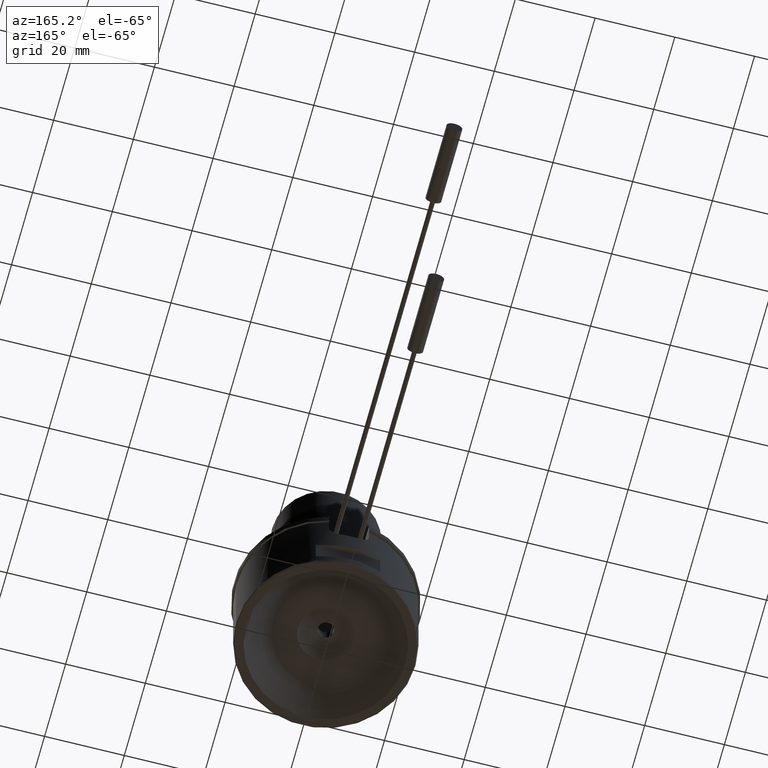
[diagram: clean part render]
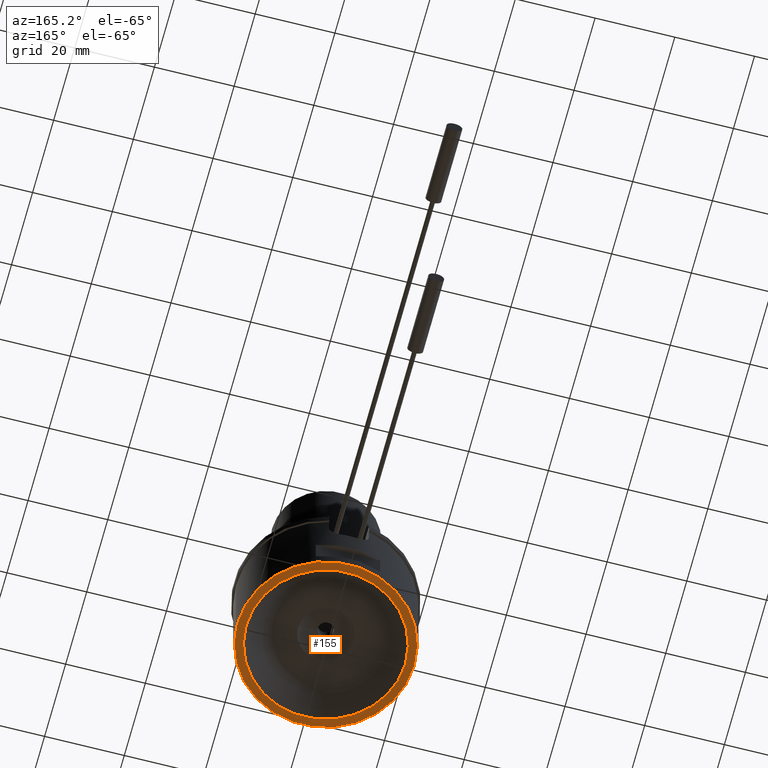
[diagram: same view with one face highlighted and labeled with its STEP entity id]
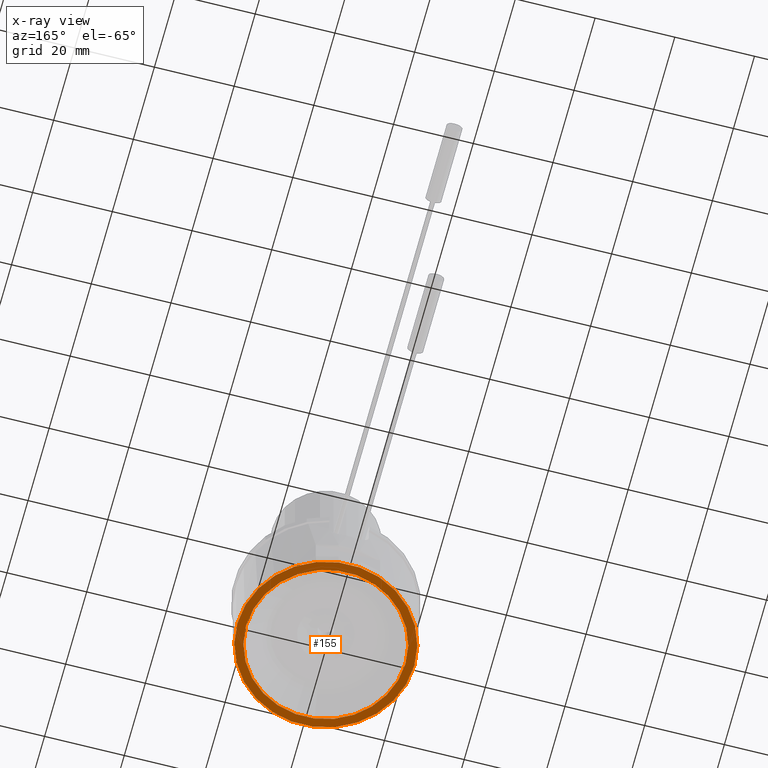
[diagram: x-ray of the same camera — body ghosted, the highlighted face saturated]
A machine part, auxiliary view. The second image highlights one B-rep face of the part: STEP entity #155.
The next image is the same camera in x-ray: the body ghosted, the highlighted face saturated — about 0% of this face is hidden behind the body in this view.
In plain terms, the highlighted planar face has unit normal (0, 0, 1).
Its self-contained STEP definition (entity closure, byte-faithful):
#155=ADVANCED_FACE('',(#332,#333),#210,.F.);
#210=PLANE('',#1016);
#332=FACE_BOUND('',#399,.T.);
#333=FACE_BOUND('',#400,.T.);
#399=EDGE_LOOP('',(#550));
#400=EDGE_LOOP('',(#551));
#550=ORIENTED_EDGE('',*,*,#864,.T.);
#551=ORIENTED_EDGE('',*,*,#865,.T.);
#766=VERTEX_POINT('',#1598);
#767=VERTEX_POINT('',#1600);
#864=EDGE_CURVE('',#766,#766,#944,.T.);
#865=EDGE_CURVE('',#767,#767,#945,.T.);
#944=CIRCLE('',#1014,22.2);
#945=CIRCLE('',#1015,20.);
#1014=AXIS2_PLACEMENT_3D('',#1597,#1206,#1207);
#1015=AXIS2_PLACEMENT_3D('',#1599,#1208,#1209);
#1016=AXIS2_PLACEMENT_3D('',#1601,#1210,#1211);
#1206=DIRECTION('',(0.,0.,-1.));
#1207=DIRECTION('',(1.,0.,0.));
#1208=DIRECTION('',(0.,0.,1.));
#1209=DIRECTION('',(1.,0.,0.));
#1210=DIRECTION('',(0.,0.,1.));
#1211=DIRECTION('',(1.,0.,0.));
#1597=CARTESIAN_POINT('',(0.,0.,-1.13697348706672E-14));
#1598=CARTESIAN_POINT('',(22.2,0.,-1.13697348706672E-14));
#1599=CARTESIAN_POINT('',(0.,0.,6.07153216591882E-15));
#1600=CARTESIAN_POINT('',(20.,0.,6.07153216591882E-15));
#1601=CARTESIAN_POINT('',(0.,0.,-1.13697348706672E-14));